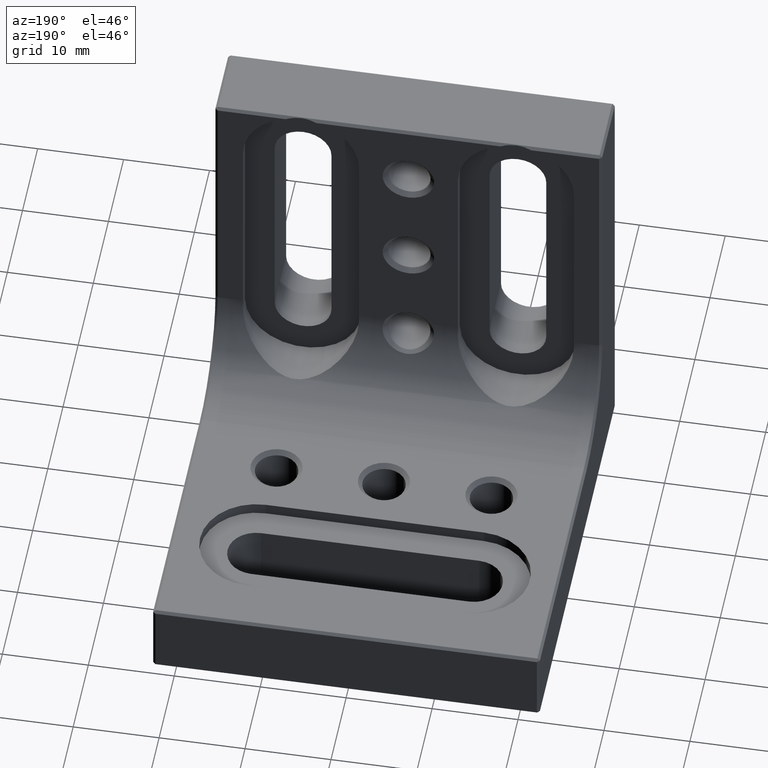
[diagram: clean part render]
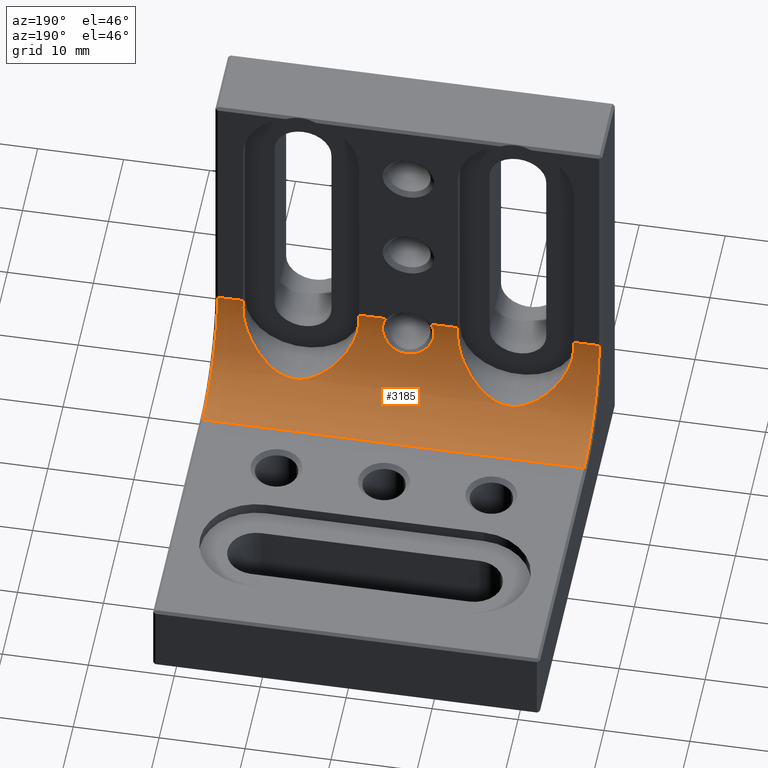
[diagram: same view with one face highlighted and labeled with its STEP entity id]
A machine part, auxiliary view. The second image highlights one B-rep face of the part: STEP entity #3185.
In plain terms, the highlighted cylindrical surface (partial cylindrical patch) has radius 10 mm, axis along (1, 0, 0).
Its self-contained STEP definition (entity closure, byte-faithful):
#8 = VERTEX_POINT ( 'NONE', #26 ) ;
#16 = CARTESIAN_POINT ( 'NONE',  ( -8.360911655495083750, 11.25876298515362706, 12.44151048518161318 ) ) ;
#21 = CARTESIAN_POINT ( 'NONE',  ( 2.815865568695619992, 8.907400136328590179, 18.44233756909147104 ) ) ;
#26 = CARTESIAN_POINT ( 'NONE',  ( 19.24999999999999645, 8.961795936890807113, 17.78999999999999915 ) ) ;
#39 = CARTESIAN_POINT ( 'NONE',  ( -12.73559647210740131, 12.71774909087560523, 11.03998895058343166 ) ) ;
#47 = CARTESIAN_POINT ( 'NONE',  ( 5.750000000000000000, 8.988085847314462029, 17.55461757244041721 ) ) ;
#61 = CARTESIAN_POINT ( 'NONE',  ( -12.97499991712234468, 12.70161625692053065, 11.05260406505152559 ) ) ;
#66 = CARTESIAN_POINT ( 'NONE',  ( 10.02422179669790836, 12.16538721579189186, 11.50671120669768221 ) ) ;
#70 = CARTESIAN_POINT ( 'NONE',  ( -19.24999999999999645, 18.89999999999999503, 18.89999999999999147 ) ) ;
#82 = ORIENTED_EDGE ( 'NONE', *, *, #3037, .F. ) ;
#85 = CARTESIAN_POINT ( 'NONE',  ( 19.15337410814838393, 9.158509254766224572, 16.62906475540452433 ) ) ;
#104 = DIRECTION ( 'NONE',  ( 0.000000000000000000, 3.469446951953613400E-15, 1.000000000000000000 ) ) ;
#109 = ORIENTED_EDGE ( 'NONE', *, *, #182, .T. ) ;
#143 = DIRECTION ( 'NONE',  ( 1.000000000000000000, -0.000000000000000000, -0.000000000000000000 ) ) ;
#161 = CARTESIAN_POINT ( 'NONE',  ( 19.24999999999999289, 8.987854955251329159, 17.55668482689079468 ) ) ;
#168 = ORIENTED_EDGE ( 'NONE', *, *, #2087, .T. ) ;
#181 = CARTESIAN_POINT ( 'NONE',  ( -3.001961959634710908, 9.043525547622600413, 17.19253438557350933 ) ) ;
#182 = EDGE_CURVE ( 'NONE', #2842, #3615, #1014, .T. ) ;
#202 = LINE ( 'NONE', #3732, #3729 ) ;
#220 = CARTESIAN_POINT ( 'NONE',  ( -17.82656775987191367, 10.39675186199267110, 13.62164522642080478 ) ) ;
#226 = CARTESIAN_POINT ( 'NONE',  ( -2.998885772600519584, 8.987687777094400587, 17.57242768206751649 ) ) ;
#239 = CARTESIAN_POINT ( 'NONE',  ( -15.93991838305100828, 11.68640015617186734, 11.96713354884769132 ) ) ;
#251 = CARTESIAN_POINT ( 'NONE',  ( 22.50000000000000000, 18.89999999999999503, 8.900000000000000355 ) ) ;
#271 = CARTESIAN_POINT ( 'NONE',  ( -5.846625891851619627, 9.158509254766221019, 16.62906475540451368 ) ) ;
#277 = CARTESIAN_POINT ( 'NONE',  ( 2.834526989576068967, 9.200281321076182905, 16.45524180941769288 ) ) ;
#291 = CARTESIAN_POINT ( 'NONE',  ( -10.23207444932638488, 12.26121445058749870, 11.41726493183950630 ) ) ;
#292 = CARTESIAN_POINT ( 'NONE',  ( 2.568559907808270815, 8.900000000000000355, 18.89999999999999147 ) ) ;
#313 = CARTESIAN_POINT ( 'NONE',  ( 12.02500008287765887, 12.70161625692052709, 11.05260406505152382 ) ) ;
#349 = CARTESIAN_POINT ( 'NONE',  ( -5.749999999999998224, 8.961795936890807113, 17.78999999999999915 ) ) ;
#356 = CARTESIAN_POINT ( 'NONE',  ( 6.476185151124112416, 9.808434599473521587, 14.71248860132308245 ) ) ;
#457 = CARTESIAN_POINT ( 'NONE',  ( 13.43784124857094042, 12.64040121272326367, 11.10134821195268806 ) ) ;
#489 = CARTESIAN_POINT ( 'NONE',  ( 19.24999999999999645, 8.899999999999996803, 18.89999999999999147 ) ) ;
#499 = CARTESIAN_POINT ( 'NONE',  ( 1.045848377828459519, 9.804839476503826035, 14.74296576154619132 ) ) ;
#524 = ORIENTED_EDGE ( 'NONE', *, *, #1839, .F. ) ;
#535 = CARTESIAN_POINT ( 'NONE',  ( -19.23749356105826891, 9.023099569274073417, 17.31825051950781713 ) ) ;
#539 = CARTESIAN_POINT ( 'NONE',  ( 2.735292838035471519, 9.261991802561141185, 16.22421561176748739 ) ) ;
#556 = CARTESIAN_POINT ( 'NONE',  ( 2.708249399186068551, 8.900000000000000355, 18.67950563780598117 ) ) ;
#559 = CARTESIAN_POINT ( 'NONE',  ( -22.20000000000000284, 8.900000000000000355, 18.89999999999999147 ) ) ;
#568 = CARTESIAN_POINT ( 'NONE',  ( -11.56215875142905958, 12.64040121272326544, 11.10134821195268806 ) ) ;
#586 = DIRECTION ( 'NONE',  ( -1.000000000000000000, -0.000000000000000000, 0.000000000000000000 ) ) ;
#607 = CARTESIAN_POINT ( 'NONE',  ( -9.054821954673144546, 11.68338230720553561, 11.97028001964558008 ) ) ;
#614 = CARTESIAN_POINT ( 'NONE',  ( 10.65815391487052288, 12.40899919916083505, 11.29225503262646768 ) ) ;
#627 = CARTESIAN_POINT ( 'NONE',  ( -5.749999999999998224, 8.961795936890807113, 17.78999999999999915 ) ) ;
#654 = CARTESIAN_POINT ( 'NONE',  ( 6.687431544436380548, 9.995246881095763314, 14.33145210119706903 ) ) ;
#655 = VECTOR ( 'NONE', #1310, 1000.000000000000000 ) ;
#670 = EDGE_CURVE ( 'NONE', #2842, #1824, #1659, .T. ) ;
#671 = LINE ( 'NONE', #3093, #655 ) ;
#677 = CARTESIAN_POINT ( 'NONE',  ( 12.97089859880423646, 12.70193491610558922, 11.05235475415083357 ) ) ;
#682 = VERTEX_POINT ( 'NONE', #2536 ) ;
#686 = ORIENTED_EDGE ( 'NONE', *, *, #3061, .F. ) ;
#718 = CIRCLE ( 'NONE', #2621, 10.00000000000000000 ) ;
#752 = CARTESIAN_POINT ( 'NONE',  ( 22.20000000000000284, 18.89999999999999503, 8.900000000000000355 ) ) ;
#755 = CARTESIAN_POINT ( 'NONE',  ( -22.50000000000000000, 8.900000000000000355, 18.89999999999999147 ) ) ;
#773 = CARTESIAN_POINT ( 'NONE',  ( -2.968030776881089405, 9.091046219691907737, 16.93904384837392030 ) ) ;
#791 = CARTESIAN_POINT ( 'NONE',  ( -18.52381484887589025, 9.808434599473521587, 14.71248860132308600 ) ) ;
#794 = CARTESIAN_POINT ( 'NONE',  ( 0.1307609575547349356, 9.887731086227043775, 14.56652459899221341 ) ) ;
#812 = CARTESIAN_POINT ( 'NONE',  ( 1.746875126721560534, 9.654170844143250108, 15.08771621241765359 ) ) ;
#817 = ORIENTED_EDGE ( 'NONE', *, *, #2238, .F. ) ;
#845 = CARTESIAN_POINT ( 'NONE',  ( 0.6639976251304746668, 9.855210385613494495, 14.63465908135530391 ) ) ;
#859 = CARTESIAN_POINT ( 'NONE',  ( -6.124772747322870359, 9.475327059305485022, 15.52813323898971731 ) ) ;
#878 = CARTESIAN_POINT ( 'NONE',  ( -6.696300026260161964, 9.999493532558535236, 14.33647077531408165 ) ) ;
#884 = CARTESIAN_POINT ( 'NONE',  ( 9.428991139528086762, 11.89044286346653756, 11.76354269351887538 ) ) ;
#904 = CARTESIAN_POINT ( 'NONE',  ( 2.998109971650949834, 8.969398493341273593, 17.69643711837464295 ) ) ;
#920 = CARTESIAN_POINT ( 'NONE',  ( -6.486027541089900872, 9.814339541652438825, 14.71722718795900242 ) ) ;
#948 = CIRCLE ( 'NONE', #2544, 10.00000000000000000 ) ;
#965 = CARTESIAN_POINT ( 'NONE',  ( 5.846585713044174071, 9.158430564085236369, 16.62951917473663954 ) ) ;
#980 = DIRECTION ( 'NONE',  ( 1.000000000000000000, -0.000000000000000000, -0.000000000000000000 ) ) ;
#988 = CARTESIAN_POINT ( 'NONE',  ( 18.51397245891010002, 9.814339541652435273, 14.71722718795901841 ) ) ;
#991 = B_SPLINE_CURVE_WITH_KNOTS ( 'NONE', 3,
 ( #1773, #47, #2071, #2105, #965, #3243, #1543, #356, #654, #2127, #1828, #2343, #2999, #3518, #884, #66, #2051, #614, #3224, #1789, #2960, #313, #1502, #3098, #677, #457, #1297, #3323, #1865, #2738, #1637, #1904, #2207, #3019, #2811, #2442, #2756, #988, #3651, #1561, #2225, #85, #2186, #3036, #161, #2461 ),
 .UNSPECIFIED., .F., .F.,
 ( 4, 2, 2, 2, 2, 2, 2, 2, 2, 2, 2, 2, 2, 2, 2, 2, 2, 2, 2, 2, 2, 2, 4 ),
 ( 0.01074316109536308309, 0.01144619313786151941, 0.01214922518035995748, 0.01355528926535682147, 0.01496135335035368719, 0.01636741743535054944, 0.01777348152034741516, 0.01917954560534428088, 0.01988257764784271547, 0.02058560969034114660, 0.02128864173283957772, 0.02199167377533800885, 0.02269470581783644345, 0.02339773786033487457, 0.02480380194533173682, 0.02620986603032860948, 0.02761593011532547520, 0.02902199420032234786, 0.02972502624282077552, 0.03042805828531920664, 0.03183412237031606196, 0.03253715441281449655, 0.03324018645531292421 ),
 .UNSPECIFIED. ) ;
#1014 = CIRCLE ( 'NONE', #1384, 10.00000000000000000 ) ;
#1043 = AXIS2_PLACEMENT_3D ( 'NONE', #2146, #2755, #104 ) ;
#1050 = CARTESIAN_POINT ( 'NONE',  ( -5.749999999999998224, 8.899999999999995026, 18.89999999999999147 ) ) ;
#1051 = EDGE_CURVE ( 'NONE', #3753, #1824, #948, .T. ) ;
#1084 = CARTESIAN_POINT ( 'NONE',  ( -2.046849069424817813, 9.557983735958522686, 15.33129526185689606 ) ) ;
#1089 = AXIS2_PLACEMENT_3D ( 'NONE', #2693, #3257, #3553 ) ;
#1106 = CARTESIAN_POINT ( 'NONE',  ( 1.409034475568589961, 9.735313198366970511, 14.89834634906242528 ) ) ;
#1118 = CARTESIAN_POINT ( 'NONE',  ( -15.57100886047191324, 11.89044286346653934, 11.76354269351887538 ) ) ;
#1123 = CARTESIAN_POINT ( 'NONE',  ( -0.1364320941204094084, 9.887593240335030842, 14.56681128686470572 ) ) ;
#1140 = CARTESIAN_POINT ( 'NONE',  ( 0.5302585164433339937, 9.867535031259199840, 14.60873807867577945 ) ) ;
#1160 = CARTESIAN_POINT ( 'NONE',  ( 2.934666687779196259, 9.118405822417814832, 16.81775082896855622 ) ) ;
#1174 = CARTESIAN_POINT ( 'NONE',  ( -13.67310704748709504, 12.59374251165477077, 11.13877105201230044 ) ) ;
#1196 = CARTESIAN_POINT ( 'NONE',  ( 2.959357083827399926, 9.093477353991779921, 16.93823652483158426 ) ) ;
#1198 = CYLINDRICAL_SURFACE ( 'NONE', #3784, 10.00000000000000000 ) ;
#1229 = CARTESIAN_POINT ( 'NONE',  ( -9.425707746309321067, 11.88910729430149971, 11.76472277058903515 ) ) ;
#1237 = DIRECTION ( 'NONE',  ( 1.000000000000000000, 0.000000000000000000, 0.000000000000000000 ) ) ;
#1297 = CARTESIAN_POINT ( 'NONE',  ( 13.67131234317959354, 12.59415079227338907, 11.13843849578960743 ) ) ;
#1310 = DIRECTION ( 'NONE',  ( -1.000000000000000000, 0.000000000000000000, 0.000000000000000000 ) ) ;
#1370 = CARTESIAN_POINT ( 'NONE',  ( -19.24999999999999645, 8.961795936890807113, 17.78999999999999915 ) ) ;
#1375 = CARTESIAN_POINT ( 'NONE',  ( -2.827168961242907397, 9.201519926497173429, 16.45997440984115556 ) ) ;
#1384 = AXIS2_PLACEMENT_3D ( 'NONE', #1867, #3188, #1943 ) ;
#1393 = CARTESIAN_POINT ( 'NONE',  ( -1.410763645087842022, 9.734968325164771841, 14.89911252470247405 ) ) ;
#1411 = CARTESIAN_POINT ( 'NONE',  ( -16.96203254010616135, 11.03927596781599263, 12.70784289601403394 ) ) ;
#1415 = CARTESIAN_POINT ( 'NONE',  ( 2.314318827240918530, 9.459049188960344523, 15.60163722870983882 ) ) ;
#1425 = CARTESIAN_POINT ( 'NONE',  ( -19.24999999999999645, 8.899999999999996803, 18.89999999999999147 ) ) ;
#1428 = CARTESIAN_POINT ( 'NONE',  ( -14.97577820330209164, 12.16538721579189364, 11.50671120669768754 ) ) ;
#1432 = CARTESIAN_POINT ( 'NONE',  ( -2.951856248972516639, 8.944516356253009448, 17.94908562280456010 ) ) ;
#1463 = CARTESIAN_POINT ( 'NONE',  ( -5.810209354049468367, 9.107296322979546943, 16.86077147482592409 ) ) ;
#1468 = CARTESIAN_POINT ( 'NONE',  ( 22.50000000000000000, 18.89999999999999503, 18.89999999999999147 ) ) ;
#1501 = CARTESIAN_POINT ( 'NONE',  ( 2.961466668003473579, 8.942371508937050351, 17.94756009634077287 ) ) ;
#1502 = CARTESIAN_POINT ( 'NONE',  ( 12.26440352789259691, 12.71774909087559990, 11.03998895058342633 ) ) ;
#1537 = CARTESIAN_POINT ( 'NONE',  ( -14.12155188199491285, 12.47872388050148018, 11.23365985038815928 ) ) ;
#1543 = CARTESIAN_POINT ( 'NONE',  ( 6.126638173750453831, 9.477151180492018767, 15.52335473127597254 ) ) ;
#1561 = CARTESIAN_POINT ( 'NONE',  ( 18.87522725267712786, 9.475327059305481470, 15.52813323898971376 ) ) ;
#1603 = CARTESIAN_POINT ( 'NONE',  ( 5.749999999999998224, 8.899999999999995026, 18.89999999999999147 ) ) ;
#1613 = CARTESIAN_POINT ( 'NONE',  ( 22.20000000000000284, 18.89999999999999503, 18.89999999999999147 ) ) ;
#1637 = CARTESIAN_POINT ( 'NONE',  ( 15.94517804532685368, 11.68338230720553028, 11.97028001964557653 ) ) ;
#1638 = LINE ( 'NONE', #3218, #1639 ) ;
#1639 = VECTOR ( 'NONE', #2082, 1000.000000000000000 ) ;
#1659 = LINE ( 'NONE', #251, #1924 ) ;
#1665 = CARTESIAN_POINT ( 'NONE',  ( -1.048967732578684142, 9.804344787081278767, 14.74404204888484315 ) ) ;
#1682 = CARTESIAN_POINT ( 'NONE',  ( -1.582518716957840743, 9.693608987552327250, 14.99569582721783156 ) ) ;
#1702 = CARTESIAN_POINT ( 'NONE',  ( 1.954373103715051796, 9.591147614591307047, 15.24203003430251080 ) ) ;
#1760 = CIRCLE ( 'NONE', #3119, 10.00000000000000178 ) ;
#1769 = CARTESIAN_POINT ( 'NONE',  ( 19.24999999999999645, 18.89999999999999503, 18.89999999999999147 ) ) ;
#1773 = CARTESIAN_POINT ( 'NONE',  ( 5.749999999999998224, 8.961795936890807113, 17.78999999999999915 ) ) ;
#1775 = CIRCLE ( 'NONE', #1043, 10.00000000000000178 ) ;
#1785 = CARTESIAN_POINT ( 'NONE',  ( -8.036360353856952798, 11.03822446293429671, 12.70902690398670210 ) ) ;
#1789 = CARTESIAN_POINT ( 'NONE',  ( 11.32689295251290318, 12.59374251165477254, 11.13877105201230044 ) ) ;
#1824 = VERTEX_POINT ( 'NONE', #752 ) ;
#1828 = CARTESIAN_POINT ( 'NONE',  ( 7.443712151295729385, 10.60789894020870250, 13.29867409225216512 ) ) ;
#1839 = EDGE_CURVE ( 'NONE', #2596, #2996, #1638, .T. ) ;
#1852 = VERTEX_POINT ( 'NONE', #292 ) ;
#1860 = EDGE_CURVE ( 'NONE', #2068, #2996, #2806, .T. ) ;
#1865 = CARTESIAN_POINT ( 'NONE',  ( 14.76792555067361690, 12.26121445058748982, 11.41726493183950630 ) ) ;
#1867 = CARTESIAN_POINT ( 'NONE',  ( -22.20000000000000284, 18.89999999999999503, 18.89999999999999147 ) ) ;
#1904 = CARTESIAN_POINT ( 'NONE',  ( 16.63908834450491270, 11.25876298515362350, 12.44151048518161495 ) ) ;
#1924 = VECTOR ( 'NONE', #3404, 1000.000000000000000 ) ;
#1943 = DIRECTION ( 'NONE',  ( 0.000000000000000000, 0.000000000000000000, -1.000000000000000000 ) ) ;
#1945 = CARTESIAN_POINT ( 'NONE',  ( -1.950577668527783803, 9.589763350399946873, 15.24947714546979682 ) ) ;
#1959 = CARTESIAN_POINT ( 'NONE',  ( -18.31256845556361768, 9.995246881095770419, 14.33145210119707080 ) ) ;
#1972 = CARTESIAN_POINT ( 'NONE',  ( -19.24999999999999645, 8.988085847314462029, 17.55461757244041721 ) ) ;
#1977 = CARTESIAN_POINT ( 'NONE',  ( -2.868477645113467922, 9.172562838217249492, 16.57788951882705319 ) ) ;
#2024 = EDGE_CURVE ( 'NONE', #682, #2068, #2380, .T. ) ;
#2051 = CARTESIAN_POINT ( 'NONE',  ( 10.22970056058231592, 12.25175681356201274, 11.42927463902782925 ) ) ;
#2068 = VERTEX_POINT ( 'NONE', #349 ) ;
#2071 = CARTESIAN_POINT ( 'NONE',  ( 5.762506438941723985, 9.023099569274073417, 17.31825051950782068 ) ) ;
#2077 = ORIENTED_EDGE ( 'NONE', *, *, #2696, .T. ) ;
#2082 = DIRECTION ( 'NONE',  ( -1.000000000000000000, 0.000000000000000000, 0.000000000000000000 ) ) ;
#2087 = EDGE_CURVE ( 'NONE', #8, #2531, #718, .T. ) ;
#2105 = CARTESIAN_POINT ( 'NONE',  ( 5.810821732145291740, 9.108189445385276528, 16.85658628759446742 ) ) ;
#2127 = CARTESIAN_POINT ( 'NONE',  ( 7.173432240128080117, 10.39675186199266754, 13.62164522642080478 ) ) ;
#2131 = DIRECTION ( 'NONE',  ( 0.000000000000000000, 3.469446951953613400E-15, 1.000000000000000000 ) ) ;
#2146 = CARTESIAN_POINT ( 'NONE',  ( 5.749999999999998224, 18.89999999999999503, 18.89999999999999147 ) ) ;
#2186 = CARTESIAN_POINT ( 'NONE',  ( 19.18979064595053075, 9.107296322979545167, 16.86077147482593475 ) ) ;
#2206 = CARTESIAN_POINT ( 'NONE',  ( 5.749999999999998224, 8.961795936890807113, 17.78999999999999915 ) ) ;
#2207 = CARTESIAN_POINT ( 'NONE',  ( 16.96363964614304720, 11.03822446293429138, 12.70902690398670742 ) ) ;
#2225 = CARTESIAN_POINT ( 'NONE',  ( 19.01206778384485219, 9.332140797897110929, 15.95530551886619897 ) ) ;
#2230 = CARTESIAN_POINT ( 'NONE',  ( -2.923929230582615890, 8.933247611653142073, 18.07591445397401486 ) ) ;
#2238 = EDGE_CURVE ( 'NONE', #2370, #3615, #671, .T. ) ;
#2251 = CARTESIAN_POINT ( 'NONE',  ( -0.9260176174048145858, 9.823199321616327140, 14.70320552389736690 ) ) ;
#2252 = DIRECTION ( 'NONE',  ( -1.000000000000000000, 0.000000000000000000, 0.000000000000000000 ) ) ;
#2258 = VECTOR ( 'NONE', #3310, 1000.000000000000000 ) ;
#2291 = CARTESIAN_POINT ( 'NONE',  ( 2.470398796682961695, 9.392692251415677873, 15.79808953043261610 ) ) ;
#2307 = CARTESIAN_POINT ( 'NONE',  ( -22.20000000000000284, 18.89999999999999503, 8.900000000000000355 ) ) ;
#2324 = CARTESIAN_POINT ( 'NONE',  ( -11.32868765682041357, 12.59415079227338552, 11.13843849578961098 ) ) ;
#2326 = ORIENTED_EDGE ( 'NONE', *, *, #3493, .T. ) ;
#2340 = CARTESIAN_POINT ( 'NONE',  ( -12.26377080602720504, 12.71772097603875373, 11.04001106424386691 ) ) ;
#2343 = CARTESIAN_POINT ( 'NONE',  ( 8.037967459893836875, 11.03927596781599441, 12.70784289601403039 ) ) ;
#2370 = VERTEX_POINT ( 'NONE', #1425 ) ;
#2380 = B_SPLINE_CURVE_WITH_KNOTS ( 'NONE', 3,
 ( #1370, #1972, #535, #2537, #3706, #3150, #2869, #791, #1959, #220, #3462, #1411, #2582, #239, #1118, #1428, #2599, #3256, #1537, #1174, #3202, #61, #39, #2340, #3237, #568, #2324, #2976, #291, #1229, #607, #16, #1785, #2956, #3513, #2920, #878, #920, #3571, #859, #2712, #271, #1463, #3277, #2633, #627 ),
 .UNSPECIFIED., .F., .F.,
 ( 4, 2, 2, 2, 2, 2, 2, 2, 2, 2, 2, 2, 2, 2, 2, 2, 2, 2, 2, 2, 2, 2, 4 ),
 ( 0.01074316109536308309, 0.01144619313786151941, 0.01214922518035995401, 0.01355528926535681626, 0.01496135335035367678, 0.01636741743535053903, 0.01777348152034740128, 0.01917954560534426006, 0.01988257764784269466, 0.02058560969034112925, 0.02128864173283956038, 0.02199167377533799497, 0.02269470581783642610, 0.02339773786033486069, 0.02480380194533172641, 0.02620986603032859213, 0.02761593011532545786, 0.02902199420032232358, 0.02972502624282075817, 0.03042805828531919277, 0.03183412237031605502, 0.03253715441281448961, 0.03324018645531292421 ),
 .UNSPECIFIED. ) ;
#2387 = ORIENTED_EDGE ( 'NONE', *, *, #670, .F. ) ;
#2442 = CARTESIAN_POINT ( 'NONE',  ( 18.19088092952263480, 10.09575758818319358, 14.15384497003232944 ) ) ;
#2461 = CARTESIAN_POINT ( 'NONE',  ( 19.24999999999999645, 8.961795936890807113, 17.78999999999999915 ) ) ;
#2531 = VERTEX_POINT ( 'NONE', #489 ) ;
#2536 = CARTESIAN_POINT ( 'NONE',  ( -19.24999999999999645, 8.961795936890807113, 17.78999999999999915 ) ) ;
#2537 = CARTESIAN_POINT ( 'NONE',  ( -19.18917826785470027, 9.108189445385274752, 16.85658628759446387 ) ) ;
#2542 = CARTESIAN_POINT ( 'NONE',  ( -2.568559907808264153, 8.900000000000000355, 18.89999999999999147 ) ) ;
#2544 = AXIS2_PLACEMENT_3D ( 'NONE', #1613, #980, #3316 ) ;
#2562 = CARTESIAN_POINT ( 'NONE',  ( -0.5391023383448840800, 9.866812500404664732, 14.61025718307874577 ) ) ;
#2582 = CARTESIAN_POINT ( 'NONE',  ( -16.63504870520124967, 11.26143292178252864, 12.43834750795412702 ) ) ;
#2586 = CARTESIAN_POINT ( 'NONE',  ( -1.636089803769245954, 9.679904395881417045, 15.02814466688831452 ) ) ;
#2596 = VERTEX_POINT ( 'NONE', #2841 ) ;
#2599 = CARTESIAN_POINT ( 'NONE',  ( -14.77029943941768053, 12.25175681356201096, 11.42927463902783103 ) ) ;
#2618 = ORIENTED_EDGE ( 'NONE', *, *, #2024, .T. ) ;
#2621 = AXIS2_PLACEMENT_3D ( 'NONE', #1769, #586, #3801 ) ;
#2633 = CARTESIAN_POINT ( 'NONE',  ( -5.749999999999999112, 8.987854955251334488, 17.55668482689079823 ) ) ;
#2662 = ORIENTED_EDGE ( 'NONE', *, *, #2864, .T. ) ;
#2693 = CARTESIAN_POINT ( 'NONE',  ( -5.749999999999998224, 18.89999999999999503, 18.89999999999999147 ) ) ;
#2696 = EDGE_CURVE ( 'NONE', #2370, #682, #1760, .T. ) ;
#2703 = CARTESIAN_POINT ( 'NONE',  ( 22.20000000000000284, 8.900000000000000355, 18.89999999999999147 ) ) ;
#2712 = CARTESIAN_POINT ( 'NONE',  ( -5.987932216155148701, 9.332140797897110929, 15.95530551886618831 ) ) ;
#2732 = B_SPLINE_CURVE_WITH_KNOTS ( 'NONE', 3,
 ( #2542, #2836, #3691, #2230, #1432, #3410, #226, #181, #773, #1977, #1375, #3752, #3710, #3103, #2894, #1084, #1945, #3121, #3467, #2586, #1682, #1393, #3768, #1665, #2251, #3156, #2562, #3432, #1123, #794, #3481, #1140, #845, #3138, #499, #2855, #1106, #812, #1702, #2874, #1415, #2291, #3172, #539, #277, #1160, #1196, #2909, #3575, #904, #1501, #21, #556, #3189 ),
 .UNSPECIFIED., .F., .F.,
 ( 4, 2, 2, 2, 2, 2, 2, 2, 2, 2, 2, 2, 2, 2, 2, 2, 2, 2, 2, 2, 2, 2, 2, 2, 2, 2, 4 ),
 ( 0.000000000000000000, 0.06249999999999941713, 0.09374999999999951428, 0.1249999999999996114, 0.1874999999999998057, 0.2187499999999998890, 0.2500000000000000000, 0.3124999999999995004, 0.3437499999999994449, 0.3593749999999995004, 0.3749999999999995004, 0.4062499999999993339, 0.4374999999999991118, 0.4687499999999989453, 0.4999999999999987788, 0.5312499999999985567, 0.5624999999999984457, 0.5937499999999982236, 0.6249999999999980016, 0.6874999999999975575, 0.7187499999999974465, 0.7499999999999975575, 0.8124999999999971134, 0.8437499999999972244, 0.8749999999999973355, 0.9374999999999986677, 1.000000000000000000 ),
 .UNSPECIFIED. ) ;
#2738 = CARTESIAN_POINT ( 'NONE',  ( 15.57429225369067538, 11.88910729430149615, 11.76472277058903160 ) ) ;
#2755 = DIRECTION ( 'NONE',  ( 1.000000000000000000, -0.000000000000000000, -0.000000000000000000 ) ) ;
#2756 = CARTESIAN_POINT ( 'NONE',  ( 18.30369997373984248, 9.999493532558533460, 14.33647077531409231 ) ) ;
#2806 = CIRCLE ( 'NONE', #1089, 10.00000000000000000 ) ;
#2811 = CARTESIAN_POINT ( 'NONE',  ( 17.83051584955962099, 10.39353051823998975, 13.62717675111609417 ) ) ;
#2836 = CARTESIAN_POINT ( 'NONE',  ( -2.707782140493111278, 8.899999999999995026, 18.68024254445011678 ) ) ;
#2841 = CARTESIAN_POINT ( 'NONE',  ( -2.568559907808264153, 8.900000000000000355, 18.89999999999999147 ) ) ;
#2842 = VERTEX_POINT ( 'NONE', #2307 ) ;
#2855 = CARTESIAN_POINT ( 'NONE',  ( 1.289048191345042671, 9.760757185203981834, 14.84079818436680931 ) ) ;
#2864 = EDGE_CURVE ( 'NONE', #2596, #1852, #2732, .T. ) ;
#2869 = CARTESIAN_POINT ( 'NONE',  ( -18.87336182624954262, 9.477151180492018767, 15.52335473127597076 ) ) ;
#2874 = CARTESIAN_POINT ( 'NONE',  ( 2.228393965319681147, 9.492787600580241403, 15.50688577807620305 ) ) ;
#2894 = CARTESIAN_POINT ( 'NONE',  ( -2.321319478850900175, 9.459370291715476498, 15.59694137900982369 ) ) ;
#2909 = CARTESIAN_POINT ( 'NONE',  ( 2.992910171181686785, 9.046452821092840324, 17.19002621884787985 ) ) ;
#2920 = CARTESIAN_POINT ( 'NONE',  ( -6.809119070477358981, 10.09575758818318825, 14.15384497003232589 ) ) ;
#2946 = DIRECTION ( 'NONE',  ( 0.000000000000000000, 0.000000000000000000, -1.000000000000000000 ) ) ;
#2956 = CARTESIAN_POINT ( 'NONE',  ( -7.438622306524492522, 10.60408775155718075, 13.30415310816122876 ) ) ;
#2960 = CARTESIAN_POINT ( 'NONE',  ( 11.55589792006041527, 12.63934939314545502, 11.10219018151829573 ) ) ;
#2971 = EDGE_LOOP ( 'NONE', ( #524, #2662, #82, #2326, #3072, #168, #686, #3332, #2387, #109, #817, #2077, #2618, #3680 ) ) ;
#2976 = CARTESIAN_POINT ( 'NONE',  ( -10.65460770930750911, 12.42141614758793722, 11.28092944486182958 ) ) ;
#2996 = VERTEX_POINT ( 'NONE', #1050 ) ;
#2999 = CARTESIAN_POINT ( 'NONE',  ( 8.364951294798750325, 11.26143292178252864, 12.43834750795412525 ) ) ;
#3019 = CARTESIAN_POINT ( 'NONE',  ( 17.56137769347549593, 10.60408775155717542, 13.30415310816122698 ) ) ;
#3036 = CARTESIAN_POINT ( 'NONE',  ( 19.23793507213426324, 9.022132560445724536, 17.32417223961275354 ) ) ;
#3037 = EDGE_CURVE ( 'NONE', #3302, #1852, #3391, .T. ) ;
#3061 = EDGE_CURVE ( 'NONE', #3753, #2531, #202, .T. ) ;
#3072 = ORIENTED_EDGE ( 'NONE', *, *, #3238, .T. ) ;
#3093 = CARTESIAN_POINT ( 'NONE',  ( -22.50000000000000000, 8.900000000000000355, 18.89999999999999147 ) ) ;
#3098 = CARTESIAN_POINT ( 'NONE',  ( 12.73622919397279674, 12.71772097603875373, 11.04001106424386514 ) ) ;
#3103 = CARTESIAN_POINT ( 'NONE',  ( -2.478113139758695294, 9.391734353685704306, 15.79467408855981425 ) ) ;
#3119 = AXIS2_PLACEMENT_3D ( 'NONE', #70, #143, #2131 ) ;
#3121 = CARTESIAN_POINT ( 'NONE',  ( -1.796143184202524834, 9.635945842731949540, 15.13449784664044095 ) ) ;
#3138 = CARTESIAN_POINT ( 'NONE',  ( 0.9195964930132918269, 9.824084779322141969, 14.70129600616488474 ) ) ;
#3150 = CARTESIAN_POINT ( 'NONE',  ( -19.01296559604999103, 9.331095938344166285, 15.95906340269380763 ) ) ;
#3156 = CARTESIAN_POINT ( 'NONE',  ( -0.6682233518714036924, 9.854795413922863290, 14.63553421566534851 ) ) ;
#3172 = CARTESIAN_POINT ( 'NONE',  ( 2.540988395447145720, 9.359981363892003969, 15.89986659475547270 ) ) ;
#3185 = ADVANCED_FACE ( 'NONE', ( #3559 ), #1198, .F. ) ;
#3188 = DIRECTION ( 'NONE',  ( -1.000000000000000000, -0.000000000000000000, -0.000000000000000000 ) ) ;
#3189 = CARTESIAN_POINT ( 'NONE',  ( 2.568559907808270815, 8.900000000000000355, 18.89999999999999147 ) ) ;
#3202 = CARTESIAN_POINT ( 'NONE',  ( -13.44410207993958828, 12.63934939314545858, 11.10219018151829928 ) ) ;
#3218 = CARTESIAN_POINT ( 'NONE',  ( -22.50000000000000000, 8.900000000000000355, 18.89999999999999147 ) ) ;
#3224 = CARTESIAN_POINT ( 'NONE',  ( 10.87844811800509071, 12.47872388050147840, 11.23365985038815573 ) ) ;
#3237 = CARTESIAN_POINT ( 'NONE',  ( -12.02910140119575644, 12.70193491610559100, 11.05235475415083357 ) ) ;
#3238 = EDGE_CURVE ( 'NONE', #3525, #8, #991, .T. ) ;
#3243 = CARTESIAN_POINT ( 'NONE',  ( 5.987034403949999195, 9.331095938344166285, 15.95906340269380763 ) ) ;
#3256 = CARTESIAN_POINT ( 'NONE',  ( -14.34184608512947712, 12.40899919916083505, 11.29225503262647123 ) ) ;
#3257 = DIRECTION ( 'NONE',  ( -1.000000000000000000, -0.000000000000000000, 0.000000000000000000 ) ) ;
#3277 = CARTESIAN_POINT ( 'NONE',  ( -5.762064927865733210, 9.022132560445724536, 17.32417223961274289 ) ) ;
#3302 = VERTEX_POINT ( 'NONE', #1603 ) ;
#3310 = DIRECTION ( 'NONE',  ( -1.000000000000000000, 0.000000000000000000, 0.000000000000000000 ) ) ;
#3316 = DIRECTION ( 'NONE',  ( 0.000000000000000000, 0.000000000000000000, -1.000000000000000000 ) ) ;
#3323 = CARTESIAN_POINT ( 'NONE',  ( 14.34539229069249444, 12.42141614758794077, 11.28092944486183313 ) ) ;
#3332 = ORIENTED_EDGE ( 'NONE', *, *, #1051, .T. ) ;
#3391 = LINE ( 'NONE', #755, #2258 ) ;
#3404 = DIRECTION ( 'NONE',  ( 1.000000000000000000, -0.000000000000000000, -0.000000000000000000 ) ) ;
#3410 = CARTESIAN_POINT ( 'NONE',  ( -2.989070004603560538, 8.971652108421899641, 17.69841734472090167 ) ) ;
#3432 = CARTESIAN_POINT ( 'NONE',  ( -0.2721163689909471550, 9.883378616256193183, 14.57554527594670191 ) ) ;
#3462 = CARTESIAN_POINT ( 'NONE',  ( -17.55628784870426529, 10.60789894020870427, 13.29867409225216690 ) ) ;
#3467 = CARTESIAN_POINT ( 'NONE',  ( -1.743541243539168617, 9.650918903232842183, 15.09790511230233356 ) ) ;
#3481 = CARTESIAN_POINT ( 'NONE',  ( 0.2638269131473074403, 9.883707464426166212, 14.57486171297464139 ) ) ;
#3493 = EDGE_CURVE ( 'NONE', #3302, #3525, #1775, .T. ) ;
#3513 = CARTESIAN_POINT ( 'NONE',  ( -7.169484150440371906, 10.39353051823998797, 13.62717675111609061 ) ) ;
#3518 = CARTESIAN_POINT ( 'NONE',  ( 9.060081616948991723, 11.68640015617186911, 11.96713354884769309 ) ) ;
#3525 = VERTEX_POINT ( 'NONE', #2206 ) ;
#3553 = DIRECTION ( 'NONE',  ( 0.000000000000000000, -2.775557561562891351E-15, -1.000000000000000000 ) ) ;
#3559 = FACE_OUTER_BOUND ( 'NONE', #2971, .T. ) ;
#3571 = CARTESIAN_POINT ( 'NONE',  ( -6.388124218760131257, 9.725002607298684154, 14.91654556732595438 ) ) ;
#3575 = CARTESIAN_POINT ( 'NONE',  ( 3.000839110910386687, 9.025277664224516272, 17.31689821399362472 ) ) ;
#3615 = VERTEX_POINT ( 'NONE', #559 ) ;
#3651 = CARTESIAN_POINT ( 'NONE',  ( 18.61187578123987407, 9.725002607298682378, 14.91654556732595793 ) ) ;
#3680 = ORIENTED_EDGE ( 'NONE', *, *, #1860, .T. ) ;
#3691 = CARTESIAN_POINT ( 'NONE',  ( -2.814390177980214069, 8.907267106995234940, 18.44572039424228649 ) ) ;
#3706 = CARTESIAN_POINT ( 'NONE',  ( -19.15341428695582593, 9.158430564085236369, 16.62951917473663599 ) ) ;
#3710 = CARTESIAN_POINT ( 'NONE',  ( -2.670568269212115986, 9.294610638154903626, 16.11629089852428720 ) ) ;
#3729 = VECTOR ( 'NONE', #2252, 1000.000000000000000 ) ;
#3732 = CARTESIAN_POINT ( 'NONE',  ( -22.50000000000000000, 8.900000000000000355, 18.89999999999999147 ) ) ;
#3752 = CARTESIAN_POINT ( 'NONE',  ( -2.728344158593826840, 9.262509117774047951, 16.22923042705420826 ) ) ;
#3753 = VERTEX_POINT ( 'NONE', #2703 ) ;
#3768 = CARTESIAN_POINT ( 'NONE',  ( -1.293454373075888286, 9.759885304378759230, 14.84275541843711110 ) ) ;
#3784 = AXIS2_PLACEMENT_3D ( 'NONE', #1468, #1237, #2946 ) ;
#3801 = DIRECTION ( 'NONE',  ( 0.000000000000000000, -2.775557561562891351E-15, -1.000000000000000000 ) ) ;